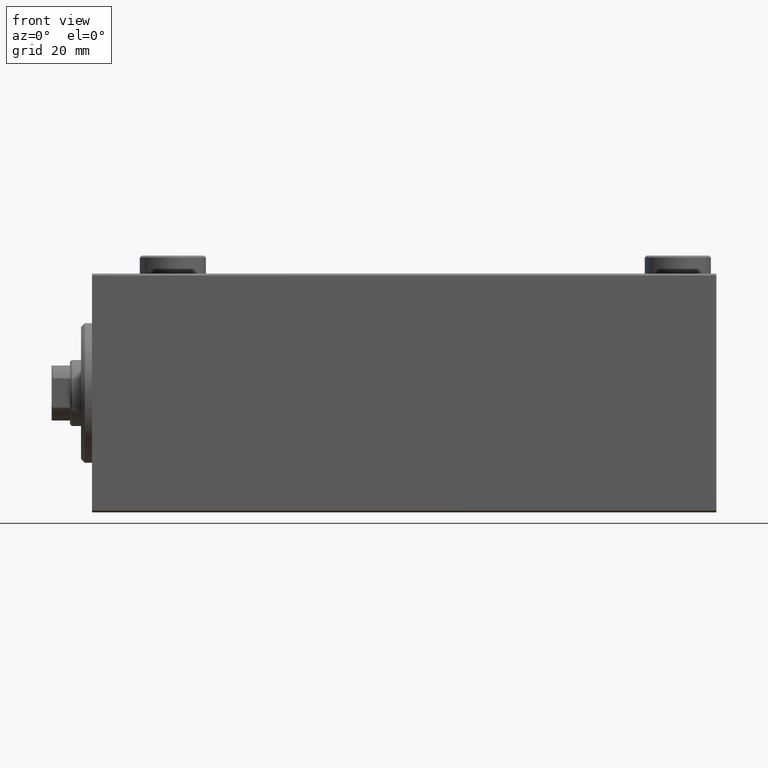
[diagram: clean part render]
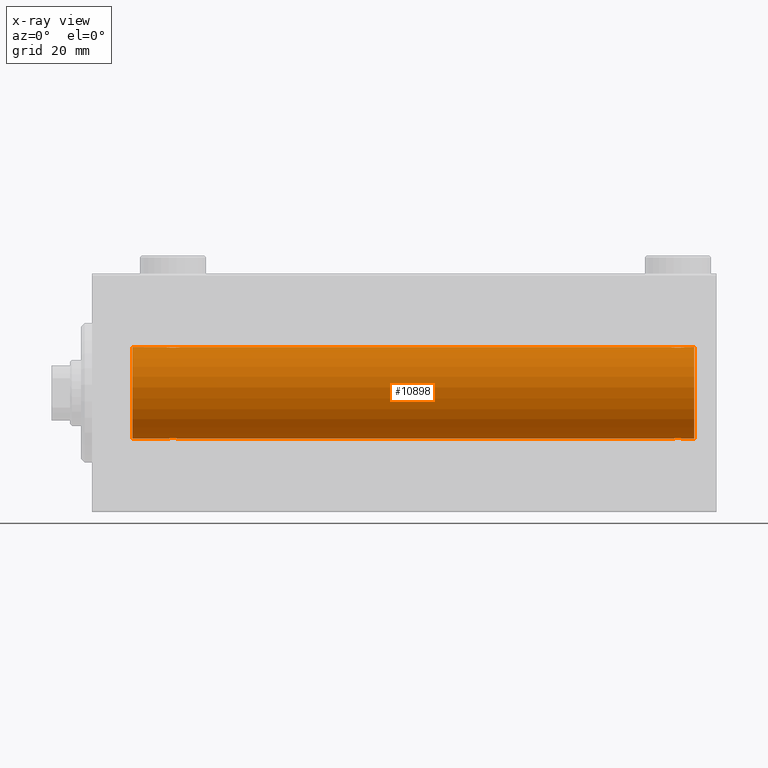
[diagram: x-ray — body ghosted, one internal face saturated and labeled with its STEP entity id]
A machine part, front view, then the same camera in x-ray: the body is ghosted and one INTERNAL B-rep face — a face not visible from any outside direction — is saturated and labeled: STEP entity #10898.
In plain terms, the highlighted cylindrical surface (partial cylindrical patch) has radius 12.5 mm, axis along (-1, -0, -0).
Its self-contained STEP definition (entity closure, byte-faithful):
#704 = CARTESIAN_POINT ( 'NONE',  ( 21.73608626897564733, -1.986793270638199882, 12.34112317291865146 ) ) ;
#825 = EDGE_CURVE ( 'NONE', #8459, #43523, #21893, .T. ) ;
#878 = DIRECTION ( 'NONE',  ( -1.000000000000000000, -0.000000000000000000, -0.000000000000000000 ) ) ;
#942 = AXIS2_PLACEMENT_3D ( 'NONE', #12363, #23413, #30106 ) ;
#963 = ORIENTED_EDGE ( 'NONE', *, *, #41292, .T. ) ;
#1018 = VERTEX_POINT ( 'NONE', #1606 ) ;
#1162 = CARTESIAN_POINT ( 'NONE',  ( 24.00000000000000000, -2.019790789754703983E-15, 12.50000000000000000 ) ) ;
#1515 = CARTESIAN_POINT ( 'NONE',  ( 161.4474434057233339, -0.5247436444070351369, -12.49130933415156974 ) ) ;
#1571 = EDGE_CURVE ( 'NONE', #16183, #13023, #14646, .T. ) ;
#1597 = CARTESIAN_POINT ( 'NONE',  ( 20.99900207901491811, -1.736403706023270654, -12.37902502246767966 ) ) ;
#1606 = CARTESIAN_POINT ( 'NONE',  ( 24.00000000000000000, -2.019790789754703983E-15, 12.50000000000000000 ) ) ;
#1646 = ORIENTED_EDGE ( 'NONE', *, *, #14176, .F. ) ;
#1791 = CARTESIAN_POINT ( 'NONE',  ( 161.5000000000000000, 3.161822422844574965E-15, 12.50000000000000000 ) ) ;
#2020 = CARTESIAN_POINT ( 'NONE',  ( 160.5009979209851281, -1.736403706023267546, 12.37902502246767966 ) ) ;
#2065 = CARTESIAN_POINT ( 'NONE',  ( 23.94744340572329833, -0.5247436444070328054, -12.49130933415156619 ) ) ;
#2299 = CARTESIAN_POINT ( 'NONE',  ( 22.13340250451295077, -1.999916920503817197, -12.33897614545467469 ) ) ;
#3076 = ORIENTED_EDGE ( 'NONE', *, *, #33384, .T. ) ;
#3192 = CARTESIAN_POINT ( 'NONE',  ( 161.5000000000000000, 1.530808426269529245E-15, -12.50000000000000000 ) ) ;
#3506 = LINE ( 'NONE', #32700, #43723 ) ;
#4535 = CARTESIAN_POINT ( 'NONE',  ( 158.4990020790149003, -1.736403706023283311, -12.37902502246767789 ) ) ;
#4543 = DIRECTION ( 'NONE',  ( -1.000000000000000000, 0.000000000000000000, 0.000000000000000000 ) ) ;
#4769 = CARTESIAN_POINT ( 'NONE',  ( 157.5000000000000000, -0.2646816682749994487, -12.50000000000000178 ) ) ;
#4797 = VERTEX_POINT ( 'NONE', #6041 ) ;
#4798 = CARTESIAN_POINT ( 'NONE',  ( 159.3665974954870137, -1.999916920503812090, 12.33897614545467292 ) ) ;
#4845 = CARTESIAN_POINT ( 'NONE',  ( 24.00000000000000000, 1.530808426277417854E-15, -12.50000000000000000 ) ) ;
#4997 = CARTESIAN_POINT ( 'NONE',  ( 161.0898109022829203, -1.220538259806352333, -12.44075068685996932 ) ) ;
#5073 = CARTESIAN_POINT ( 'NONE',  ( 20.78145880458060901, -1.591305132013878021, -12.39851226212236313 ) ) ;
#5099 = CARTESIAN_POINT ( 'NONE',  ( 21.48038527642126283, -1.935716533151644381, 12.34923763528284901 ) ) ;
#5253 = CARTESIAN_POINT ( 'NONE',  ( 160.3861615387943971, -1.797736511708058815, 12.37015393445321187 ) ) ;
#5303 = CARTESIAN_POINT ( 'NONE',  ( 22.26391373102435622, -1.986793270638196551, -12.34112317291864791 ) ) ;
#5487 = CARTESIAN_POINT ( 'NONE',  ( 159.7609349728561199, -1.987194304939070788, 12.34105826212745960 ) ) ;
#5531 = CARTESIAN_POINT ( 'NONE',  ( 23.79785606468258052, -0.8858253204748003373, -12.46915613403960954 ) ) ;
#5582 = EDGE_CURVE ( 'NONE', #19053, #1018, #30260, .T. ) ;
#5759 = CARTESIAN_POINT ( 'NONE',  ( 23.00345574076691335, -1.734959850168410256, -12.37922718965050528 ) ) ;
#6041 = CARTESIAN_POINT ( 'NONE',  ( 161.5000000000000000, 3.161822422844574965E-15, 12.50000000000000000 ) ) ;
#7857 = CARTESIAN_POINT ( 'NONE',  ( 20.77972850102579372, -1.589951752150277953, 12.39868561261689095 ) ) ;
#7910 = CARTESIAN_POINT ( 'NONE',  ( 11.00000000000001066, 1.530808498934191521E-15, -12.50000000000000000 ) ) ;
#8087 = CARTESIAN_POINT ( 'NONE',  ( 23.94665679898379906, -0.5275951738695691118, 12.49118442338578561 ) ) ;
#8118 = ORIENTED_EDGE ( 'NONE', *, *, #12169, .F. ) ;
#8216 = CARTESIAN_POINT ( 'NONE',  ( 159.7639137310243598, -1.986793270638207209, -12.34112317291865146 ) ) ;
#8249 = CARTESIAN_POINT ( 'NONE',  ( 160.8211671285144462, -1.507135374967689234, 12.40915432986587241 ) ) ;
#8454 = CARTESIAN_POINT ( 'NONE',  ( 161.2978560646826054, -0.8858253204748055554, -12.46915613403961665 ) ) ;
#8459 = VERTEX_POINT ( 'NONE', #44433 ) ;
#8552 = CARTESIAN_POINT ( 'NONE',  ( 23.99999999999998934, -0.2646816682749779659, 12.49999999999999822 ) ) ;
#8711 = CARTESIAN_POINT ( 'NONE',  ( 160.0169372669762993, -1.936441098420697671, 12.34912369794529141 ) ) ;
#9000 = LINE ( 'NONE', #33664, #28881 ) ;
#9695 = VECTOR ( 'NONE', #14800, 1000.000000000000000 ) ;
#10898 = ADVANCED_FACE ( 'NONE', ( #36197 ), #11310, .F. ) ;
#11310 = CYLINDRICAL_SURFACE ( 'NONE', #13507, 12.50000000000000000 ) ;
#11449 = CARTESIAN_POINT ( 'NONE',  ( 160.5034557407669809, -1.734959850168406259, -12.37922718965051061 ) ) ;
#11675 = CARTESIAN_POINT ( 'NONE',  ( 160.8229994310773918, -1.505544071529932415, -12.40934942683854025 ) ) ;
#11709 = CARTESIAN_POINT ( 'NONE',  ( 160.7185411954193626, -1.591305132013873358, 12.39851226212236490 ) ) ;
#11755 = CARTESIAN_POINT ( 'NONE',  ( 19.99999999999999645, -3.213890523917628161E-15, -12.50000000000000000 ) ) ;
#11942 = CARTESIAN_POINT ( 'NONE',  ( 157.7021439353174515, -0.8858253204748001153, 12.46915613403961132 ) ) ;
#12012 = CARTESIAN_POINT ( 'NONE',  ( 22.13089967323422158, -2.000082296475567567, 12.33894933996983134 ) ) ;
#12169 = EDGE_CURVE ( 'NONE', #19184, #4797, #3506, .T. ) ;
#12176 = ORIENTED_EDGE ( 'NONE', *, *, #19753, .T. ) ;
#12221 = CARTESIAN_POINT ( 'NONE',  ( 20.25337863379106551, -1.008535157355840761, -12.46157701909767646 ) ) ;
#12363 = CARTESIAN_POINT ( 'NONE',  ( 164.0000000000000000, 0.000000000000000000, 0.000000000000000000 ) ) ;
#12401 = CARTESIAN_POINT ( 'NONE',  ( 157.9101890977170797, -1.220538259806341008, 12.44075068685997110 ) ) ;
#12636 = CARTESIAN_POINT ( 'NONE',  ( 164.0000000000000000, 0.000000000000000000, 12.50000000000000000 ) ) ;
#12676 = CARTESIAN_POINT ( 'NONE',  ( 21.73906502714393341, -1.987194304939077671, -12.34105826212746138 ) ) ;
#13023 = VERTEX_POINT ( 'NONE', #38473 ) ;
#13258 = VERTEX_POINT ( 'NONE', #7910 ) ;
#13507 = AXIS2_PLACEMENT_3D ( 'NONE', #31607, #39652, #35514 ) ;
#13871 = CARTESIAN_POINT ( 'NONE',  ( 20.20214393531741237, -0.8858253204748030019, 12.46915613403961132 ) ) ;
#14176 = EDGE_CURVE ( 'NONE', #17793, #19184, #18611, .T. ) ;
#14543 = CARTESIAN_POINT ( 'NONE',  ( 20.41018909771709744, -1.220538259806348114, 12.44075068685996754 ) ) ;
#14646 = B_SPLINE_CURVE_WITH_KNOTS ( 'NONE', 3,
 ( #4845, #22803, #2065, #5531, #16124, #37329, #33882, #36877, #40797, #5759, #43329, #22576, #26039, #5303, #2299, #29487, #12676, #15899, #26496, #30191, #1597, #5073, #15669, #15436, #12221, #19341, #29260, #11755 ),
 .UNSPECIFIED., .F., .F.,
 ( 4, 2, 2, 2, 2, 2, 2, 2, 2, 2, 2, 2, 2, 4 ),
 ( 0.006262980370572176700, 0.007045658964677373355, 0.007436998261729973851, 0.007828337558782575215, 0.008219676855835175711, 0.008611016152887776207, 0.009002355449940376703, 0.009393694746992977199, 0.009785034044045577695, 0.01017637334109817646, 0.01056771263815077869, 0.01095905193520337745, 0.01174173052930858711, 0.01252440912341379504 ),
 .UNSPECIFIED. ) ;
#14800 = DIRECTION ( 'NONE',  ( -1.000000000000000000, -0.000000000000000000, -0.000000000000000000 ) ) ;
#15157 = CARTESIAN_POINT ( 'NONE',  ( 158.6112527420295635, -1.796480516834680019, 12.37033750336835602 ) ) ;
#15436 = CARTESIAN_POINT ( 'NONE',  ( 20.40255225308977671, -1.231226695485369893, -12.44059298055988627 ) ) ;
#15588 = CARTESIAN_POINT ( 'NONE',  ( 161.2356307801957485, -1.002396200863562736, -12.46022444231050841 ) ) ;
#15618 = CARTESIAN_POINT ( 'NONE',  ( 157.9927784853200308, -1.321088093821080278, 12.43033959299025071 ) ) ;
#15669 = CARTESIAN_POINT ( 'NONE',  ( 20.67883287148555382, -1.507135374967699670, -12.40915432986587064 ) ) ;
#15686 = DIRECTION ( 'NONE',  ( -1.000000000000000000, -0.000000000000000000, -0.000000000000000000 ) ) ;
#15826 = CARTESIAN_POINT ( 'NONE',  ( 158.2814588045805522, -1.591305132013888457, -12.39851226212235957 ) ) ;
#15899 = CARTESIAN_POINT ( 'NONE',  ( 21.48306273302371494, -1.936441098420706997, -12.34912369794528431 ) ) ;
#16001 = ORIENTED_EDGE ( 'NONE', *, *, #5582, .F. ) ;
#16124 = CARTESIAN_POINT ( 'NONE',  ( 23.73563078019576977, -1.002396200863559184, -12.46022444231050663 ) ) ;
#16183 = VERTEX_POINT ( 'NONE', #22180 ) ;
#17793 = VERTEX_POINT ( 'NONE', #45391 ) ;
#18258 = LINE ( 'NONE', #32325, #9695 ) ;
#18347 = CARTESIAN_POINT ( 'NONE',  ( 161.5000000000000568, -0.2612140938986745597, -12.50000000000000178 ) ) ;
#18354 = DIRECTION ( 'NONE',  ( 0.000000000000000000, 0.000000000000000000, 1.000000000000000000 ) ) ;
#18449 = CARTESIAN_POINT ( 'NONE',  ( 20.67700056892266502, -1.505544071529936634, 12.40934942683854025 ) ) ;
#18575 = CARTESIAN_POINT ( 'NONE',  ( 157.9025522530897376, -1.231226695485374778, -12.44059298055987917 ) ) ;
#18611 = CIRCLE ( 'NONE', #942, 12.50000000000000000 ) ;
#18835 = CARTESIAN_POINT ( 'NONE',  ( 158.2797285010257724, -1.589951752150270181, 12.39868561261689095 ) ) ;
#18906 = CARTESIAN_POINT ( 'NONE',  ( 20.99654425923307599, -1.734959850168413142, 12.37922718965050528 ) ) ;
#18917 = LINE ( 'NONE', #25608, #45086 ) ;
#19053 = VERTEX_POINT ( 'NONE', #28539 ) ;
#19106 = ORIENTED_EDGE ( 'NONE', *, *, #30865, .T. ) ;
#19184 = VERTEX_POINT ( 'NONE', #12636 ) ;
#19291 = CARTESIAN_POINT ( 'NONE',  ( 161.2466213662089842, -1.008535157355840761, 12.46157701909768178 ) ) ;
#19341 = CARTESIAN_POINT ( 'NONE',  ( 20.05334320101619738, -0.5275951738695662252, -12.49118442338578561 ) ) ;
#19550 = CARTESIAN_POINT ( 'NONE',  ( 11.00000000000001066, 0.000000000000000000, 12.50000000000000000 ) ) ;
#19753 = EDGE_CURVE ( 'NONE', #8459, #1018, #34939, .T. ) ;
#19759 = CARTESIAN_POINT ( 'NONE',  ( 157.5000000000000000, -7.266434456262306043E-23, 12.50000000000000000 ) ) ;
#21679 = CARTESIAN_POINT ( 'NONE',  ( 23.00099792098507834, -1.736403706023272875, 12.37902502246767789 ) ) ;
#21893 = LINE ( 'NONE', #28810, #43448 ) ;
#21906 = CARTESIAN_POINT ( 'NONE',  ( 21.35356103036408371, -1.897190184049190043, 12.35529285772521391 ) ) ;
#22034 = CARTESIAN_POINT ( 'NONE',  ( 160.1464389696359660, -1.897190184049198036, -12.35529285772521213 ) ) ;
#22180 = CARTESIAN_POINT ( 'NONE',  ( 24.00000000000000000, 1.530808426277417854E-15, -12.50000000000000000 ) ) ;
#22300 = CARTESIAN_POINT ( 'NONE',  ( 161.5000000000000284, -0.2646816682749797423, 12.50000000000000533 ) ) ;
#22501 = CARTESIAN_POINT ( 'NONE',  ( 160.7202714989741992, -1.589951752150265962, -12.39868561261689095 ) ) ;
#22576 = CARTESIAN_POINT ( 'NONE',  ( 22.64643896963591985, -1.897190184049187378, -12.35529285772521924 ) ) ;
#22601 = CARTESIAN_POINT ( 'NONE',  ( 22.51693726697628506, -1.936441098420709439, 12.34912369794528786 ) ) ;
#22759 = CARTESIAN_POINT ( 'NONE',  ( 160.1442527879773365, -1.897913903092044663, 12.35518060345725289 ) ) ;
#22803 = CARTESIAN_POINT ( 'NONE',  ( 24.00000000000000711, -0.2612140938986747818, -12.50000000000000533 ) ) ;
#22953 = CARTESIAN_POINT ( 'NONE',  ( 161.0072215146799977, -1.321088093821073395, -12.43033959299025426 ) ) ;
#23339 = DIRECTION ( 'NONE',  ( -1.000000000000000000, -0.000000000000000000, -0.000000000000000000 ) ) ;
#23378 = ORIENTED_EDGE ( 'NONE', *, *, #1571, .T. ) ;
#23413 = DIRECTION ( 'NONE',  ( -1.000000000000000000, 0.000000000000000000, 0.000000000000000000 ) ) ;
#23486 = B_SPLINE_CURVE_WITH_KNOTS ( 'NONE', 3,
 ( #19759, #43979, #29441, #11942, #40062, #12401, #15618, #43758, #18835, #26223, #15157, #40286, #29214, #43280, #4798, #37057, #5487, #8711, #22759, #5253, #2020, #11709, #8249, #25749, #19291, #39819, #22300, #1791 ),
 .UNSPECIFIED., .F., .F.,
 ( 4, 2, 2, 2, 2, 2, 2, 2, 2, 2, 2, 2, 2, 4 ),
 ( 0.006262980370572171496, 0.007045658964677375090, 0.007436998261729976453, 0.007828337558782578684, 0.008219676855835179180, 0.008611016152887781411, 0.009002355449940383642, 0.009393694746992985872, 0.009785034044045588103, 0.01017637334109819033, 0.01056771263815079256, 0.01095905193520339306, 0.01174173052930859579, 0.01252440912341379851 ),
 .UNSPECIFIED. ) ;
#23867 = ORIENTED_EDGE ( 'NONE', *, *, #39183, .T. ) ;
#25491 = CARTESIAN_POINT ( 'NONE',  ( 158.6138384612056598, -1.797736511708074358, -12.37015393445320299 ) ) ;
#25608 = CARTESIAN_POINT ( 'NONE',  ( 164.0000000000000000, 1.530808498934191521E-15, -12.50000000000000000 ) ) ;
#25721 = CARTESIAN_POINT ( 'NONE',  ( 158.8557472120227203, -1.897913903092060650, -12.35518060345724933 ) ) ;
#25749 = CARTESIAN_POINT ( 'NONE',  ( 161.0974477469102908, -1.231226695485358569, 12.44059298055988450 ) ) ;
#26039 = CARTESIAN_POINT ( 'NONE',  ( 22.51961472357873717, -1.935716533151642826, -12.34923763528285257 ) ) ;
#26064 = CARTESIAN_POINT ( 'NONE',  ( 21.11125274202960256, -1.796480516834689567, 12.37033750336835602 ) ) ;
#26223 = CARTESIAN_POINT ( 'NONE',  ( 158.4965442592331044, -1.734959850168406259, 12.37922718965050883 ) ) ;
#26496 = CARTESIAN_POINT ( 'NONE',  ( 21.35574721202270254, -1.897913903092047327, -12.35518060345725289 ) ) ;
#26719 = ORIENTED_EDGE ( 'NONE', *, *, #44637, .T. ) ;
#27924 = CARTESIAN_POINT ( 'NONE',  ( 20.26436921980423378, -1.002396200863559850, 12.46022444231050841 ) ) ;
#28380 = CARTESIAN_POINT ( 'NONE',  ( 20.00000000000000000, -0.2612140938986765581, 12.50000000000000000 ) ) ;
#28539 = CARTESIAN_POINT ( 'NONE',  ( 157.5000000000000000, -7.266434456262306043E-23, 12.50000000000000000 ) ) ;
#28600 = CARTESIAN_POINT ( 'NONE',  ( 20.49277848532006274, -1.321088093821079168, 12.43033959299025071 ) ) ;
#28810 = CARTESIAN_POINT ( 'NONE',  ( 164.0000000000000000, 0.000000000000000000, 12.50000000000000000 ) ) ;
#28881 = VECTOR ( 'NONE', #15686, 1000.000000000000000 ) ;
#29059 = CARTESIAN_POINT ( 'NONE',  ( 23.21854119541937678, -1.591305132013879131, 12.39851226212236135 ) ) ;
#29189 = CARTESIAN_POINT ( 'NONE',  ( 11.00000000000001066, 0.000000000000000000, 0.000000000000000000 ) ) ;
#29214 = CARTESIAN_POINT ( 'NONE',  ( 158.9803852764212593, -1.935716533151636165, 12.34923763528285434 ) ) ;
#29260 = CARTESIAN_POINT ( 'NONE',  ( 20.00000000000000000, -0.2646816682749822958, -12.50000000000000000 ) ) ;
#29411 = CARTESIAN_POINT ( 'NONE',  ( 160.3887472579704081, -1.796480516834696006, -12.37033750336835602 ) ) ;
#29441 = CARTESIAN_POINT ( 'NONE',  ( 157.5525565942766946, -0.5247436444070314732, 12.49130933415156619 ) ) ;
#29487 = CARTESIAN_POINT ( 'NONE',  ( 21.86910032676576421, -2.000082296475566679, -12.33894933996983490 ) ) ;
#29649 = CARTESIAN_POINT ( 'NONE',  ( 158.9830627330237292, -1.936441098420720319, -12.34912369794528608 ) ) ;
#30077 = AXIS2_PLACEMENT_3D ( 'NONE', #29189, #4543, #18354 ) ;
#30106 = DIRECTION ( 'NONE',  ( 0.000000000000000000, 0.000000000000000000, 1.000000000000000000 ) ) ;
#30120 = VERTEX_POINT ( 'NONE', #33730 ) ;
#30191 = CARTESIAN_POINT ( 'NONE',  ( 21.11383846120566332, -1.797736511708062368, -12.37015393445320122 ) ) ;
#30260 = LINE ( 'NONE', #36715, #40593 ) ;
#30865 = EDGE_CURVE ( 'NONE', #37609, #30120, #40235, .T. ) ;
#31393 = CARTESIAN_POINT ( 'NONE',  ( 20.05255659427669812, -0.5247436444070349149, 12.49130933415156974 ) ) ;
#31607 = CARTESIAN_POINT ( 'NONE',  ( 164.0000000000000000, 0.000000000000000000, 0.000000000000000000 ) ) ;
#32077 = CARTESIAN_POINT ( 'NONE',  ( 19.99999999999999645, -7.265724481447607133E-23, 12.50000000000000000 ) ) ;
#32112 = ORIENTED_EDGE ( 'NONE', *, *, #34370, .T. ) ;
#32325 = CARTESIAN_POINT ( 'NONE',  ( 164.0000000000000000, 1.530808498934191521E-15, -12.50000000000000000 ) ) ;
#32415 = CARTESIAN_POINT ( 'NONE',  ( 159.2390650271439370, -1.987194304939089884, -12.34105826212745782 ) ) ;
#32517 = CARTESIAN_POINT ( 'NONE',  ( 22.88616153879432957, -1.797736511708064366, 12.37015393445321010 ) ) ;
#32650 = CARTESIAN_POINT ( 'NONE',  ( 159.3691003267657607, -2.000082296475576893, -12.33894933996983134 ) ) ;
#32700 = CARTESIAN_POINT ( 'NONE',  ( 164.0000000000000000, 0.000000000000000000, 12.50000000000000000 ) ) ;
#32985 = CARTESIAN_POINT ( 'NONE',  ( 22.64425278797729746, -1.897913903092049104, 12.35518060345724933 ) ) ;
#33072 = ORIENTED_EDGE ( 'NONE', *, *, #825, .F. ) ;
#33384 = EDGE_CURVE ( 'NONE', #13258, #43523, #41853, .T. ) ;
#33664 = CARTESIAN_POINT ( 'NONE',  ( 164.0000000000000000, 1.530808498934191521E-15, -12.50000000000000000 ) ) ;
#33730 = CARTESIAN_POINT ( 'NONE',  ( 157.5000000000000000, -1.754126588401769966E-14, -12.50000000000000000 ) ) ;
#33882 = CARTESIAN_POINT ( 'NONE',  ( 23.50722151467992660, -1.321088093821078502, -12.43033959299025248 ) ) ;
#34370 = EDGE_CURVE ( 'NONE', #19053, #4797, #23486, .T. ) ;
#34939 = B_SPLINE_CURVE_WITH_KNOTS ( 'NONE', 3,
 ( #32077, #28380, #31393, #13871, #27924, #14543, #28600, #18449, #7857, #18906, #26064, #21906, #5099, #704, #35981, #12012, #43124, #22601, #32985, #32517, #21679, #29059, #39207, #42666, #40128, #8087, #8552, #1162 ),
 .UNSPECIFIED., .F., .F.,
 ( 4, 2, 2, 2, 2, 2, 2, 2, 2, 2, 2, 2, 2, 4 ),
 ( 0.006262980370572162822, 0.007045658964677358610, 0.007436998261729958239, 0.007828337558782557867, 0.008219676855835158363, 0.008611016152887758859, 0.009002355449940359355, 0.009393694746992958117, 0.009785034044045558613, 0.01017637334109815911, 0.01056771263815075960, 0.01095905193520336010, 0.01174173052930856803, 0.01252440912341377596 ),
 .UNSPECIFIED. ) ;
#35514 = DIRECTION ( 'NONE',  ( 0.000000000000000000, 0.000000000000000000, 1.000000000000000000 ) ) ;
#35981 = CARTESIAN_POINT ( 'NONE',  ( 21.86659749548704212, -1.999916920503819862, 12.33897614545467469 ) ) ;
#36108 = CARTESIAN_POINT ( 'NONE',  ( 160.0196147235787691, -1.935716533151650820, -12.34923763528284724 ) ) ;
#36197 = FACE_OUTER_BOUND ( 'NONE', #39519, .T. ) ;
#36715 = CARTESIAN_POINT ( 'NONE',  ( 164.0000000000000000, 0.000000000000000000, 12.50000000000000000 ) ) ;
#36877 = CARTESIAN_POINT ( 'NONE',  ( 23.32299943107732432, -1.505544071529935080, -12.40934942683853848 ) ) ;
#37057 = CARTESIAN_POINT ( 'NONE',  ( 159.6308996732342678, -2.000082296475561794, 12.33894933996983134 ) ) ;
#37329 = CARTESIAN_POINT ( 'NONE',  ( 23.58981090228289546, -1.220538259806347225, -12.44075068685997287 ) ) ;
#37609 = VERTEX_POINT ( 'NONE', #3192 ) ;
#38473 = CARTESIAN_POINT ( 'NONE',  ( 19.99999999999999645, -3.213890523917628161E-15, -12.50000000000000000 ) ) ;
#39183 = EDGE_CURVE ( 'NONE', #13023, #13258, #18258, .T. ) ;
#39207 = CARTESIAN_POINT ( 'NONE',  ( 23.32116712851443552, -1.507135374967700114, 12.40915432986586708 ) ) ;
#39421 = DIRECTION ( 'NONE',  ( -1.000000000000000000, -0.000000000000000000, -0.000000000000000000 ) ) ;
#39519 = EDGE_LOOP ( 'NONE', ( #1646, #963, #19106, #26719, #23378, #23867, #3076, #33072, #12176, #16001, #32112, #8118 ) ) ;
#39652 = DIRECTION ( 'NONE',  ( -1.000000000000000000, -0.000000000000000000, -0.000000000000000000 ) ) ;
#39789 = CARTESIAN_POINT ( 'NONE',  ( 157.5000000000000000, -1.754126588401769966E-14, -12.50000000000000000 ) ) ;
#39819 = CARTESIAN_POINT ( 'NONE',  ( 161.4466567989838097, -0.5275951738695676685, 12.49118442338578738 ) ) ;
#40062 = CARTESIAN_POINT ( 'NONE',  ( 157.7643692198042231, -1.002396200863552300, 12.46022444231050841 ) ) ;
#40128 = CARTESIAN_POINT ( 'NONE',  ( 23.74662136620892383, -1.008535157355843648, 12.46157701909767823 ) ) ;
#40235 = B_SPLINE_CURVE_WITH_KNOTS ( 'NONE', 3,
 ( #43247, #18347, #1515, #8454, #15588, #4997, #22953, #11675, #22501, #11449, #29411, #22034, #36108, #8216, #43020, #32650, #32415, #29649, #25721, #25491, #4535, #15826, #43482, #18575, #43949, #43724, #4769, #39789 ),
 .UNSPECIFIED., .F., .F.,
 ( 4, 2, 2, 2, 2, 2, 2, 2, 2, 2, 2, 2, 2, 4 ),
 ( 0.006262980370572156751, 0.007045658964677361212, 0.007436998261729963443, 0.007828337558782566541, 0.008219676855835168772, 0.008611016152887771002, 0.009002355449940373233, 0.009393694746992975464, 0.009785034044045577695, 0.01017637334109817993, 0.01056771263815078216, 0.01095905193520338439, 0.01174173052930858885, 0.01252440912341379331 ),
 .UNSPECIFIED. ) ;
#40286 = CARTESIAN_POINT ( 'NONE',  ( 158.8535610303641192, -1.897190184049181383, 12.35529285772521391 ) ) ;
#40593 = VECTOR ( 'NONE', #23339, 1000.000000000000000 ) ;
#40797 = CARTESIAN_POINT ( 'NONE',  ( 23.22027149897420628, -1.589951752150275732, -12.39868561261689273 ) ) ;
#41292 = EDGE_CURVE ( 'NONE', #17793, #37609, #9000, .T. ) ;
#41853 = CIRCLE ( 'NONE', #30077, 12.50000000000000000 ) ;
#42666 = CARTESIAN_POINT ( 'NONE',  ( 23.59744774691022684, -1.231226695485370337, 12.44059298055987917 ) ) ;
#43020 = CARTESIAN_POINT ( 'NONE',  ( 159.6334025045129863, -1.999916920503827633, -12.33897614545467114 ) ) ;
#43124 = CARTESIAN_POINT ( 'NONE',  ( 22.26093497285606304, -1.987194304939079004, 12.34105826212746138 ) ) ;
#43247 = CARTESIAN_POINT ( 'NONE',  ( 161.5000000000000000, 1.530808426269529245E-15, -12.50000000000000000 ) ) ;
#43280 = CARTESIAN_POINT ( 'NONE',  ( 159.2360862689756686, -1.986793270638192555, 12.34112317291865324 ) ) ;
#43329 = CARTESIAN_POINT ( 'NONE',  ( 22.88874725797039389, -1.796480516834687347, -12.37033750336835247 ) ) ;
#43448 = VECTOR ( 'NONE', #39421, 1000.000000000000000 ) ;
#43482 = CARTESIAN_POINT ( 'NONE',  ( 158.1788328714855822, -1.507135374967705665, -12.40915432986586353 ) ) ;
#43523 = VERTEX_POINT ( 'NONE', #19550 ) ;
#43599 = DIRECTION ( 'NONE',  ( -1.000000000000000000, -0.000000000000000000, -0.000000000000000000 ) ) ;
#43723 = VECTOR ( 'NONE', #878, 1000.000000000000000 ) ;
#43724 = CARTESIAN_POINT ( 'NONE',  ( 157.5533432010162187, -0.5275951738695863202, -12.49118442338578028 ) ) ;
#43758 = CARTESIAN_POINT ( 'NONE',  ( 158.1770005689227219, -1.505544071529936634, 12.40934942683854203 ) ) ;
#43949 = CARTESIAN_POINT ( 'NONE',  ( 157.7533786337910726, -1.008535157355858525, -12.46157701909767468 ) ) ;
#43979 = CARTESIAN_POINT ( 'NONE',  ( 157.5000000000000853, -0.2612140938986755589, 12.50000000000000533 ) ) ;
#44433 = CARTESIAN_POINT ( 'NONE',  ( 19.99999999999999645, -7.265724481447607133E-23, 12.50000000000000000 ) ) ;
#44637 = EDGE_CURVE ( 'NONE', #30120, #16183, #18917, .T. ) ;
#45086 = VECTOR ( 'NONE', #43599, 1000.000000000000000 ) ;
#45391 = CARTESIAN_POINT ( 'NONE',  ( 164.0000000000000000, 1.530808498934191521E-15, -12.50000000000000000 ) ) ;